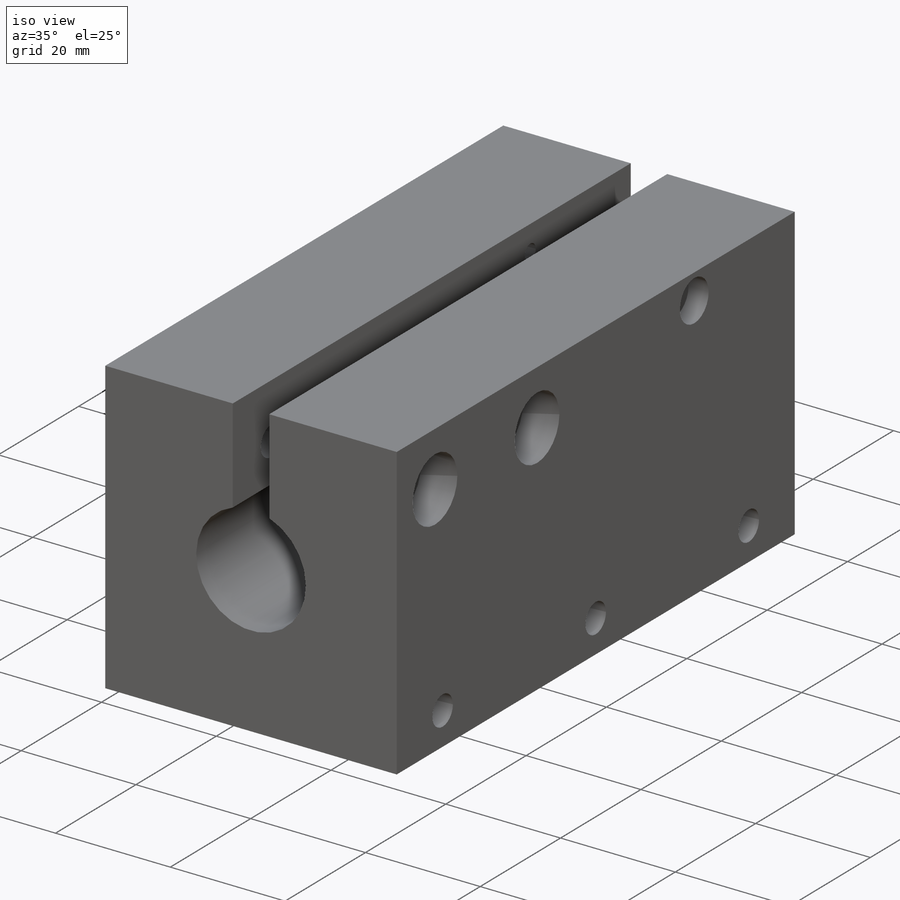
[diagram: iso view]
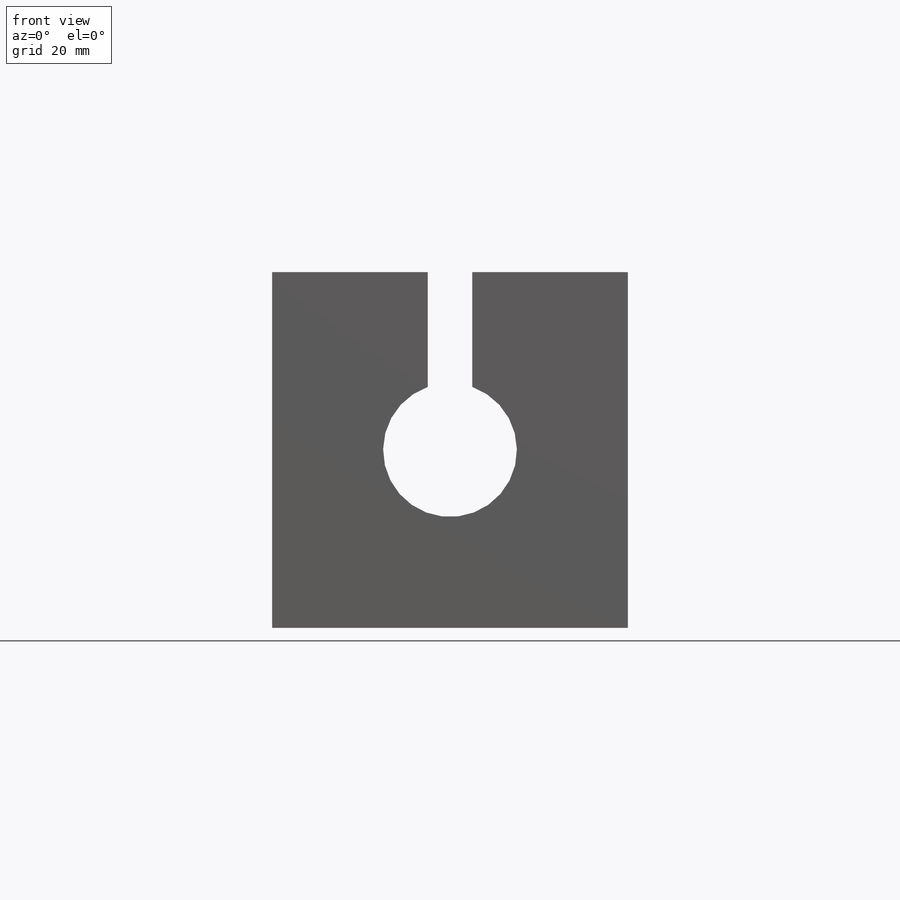
[diagram: front view]
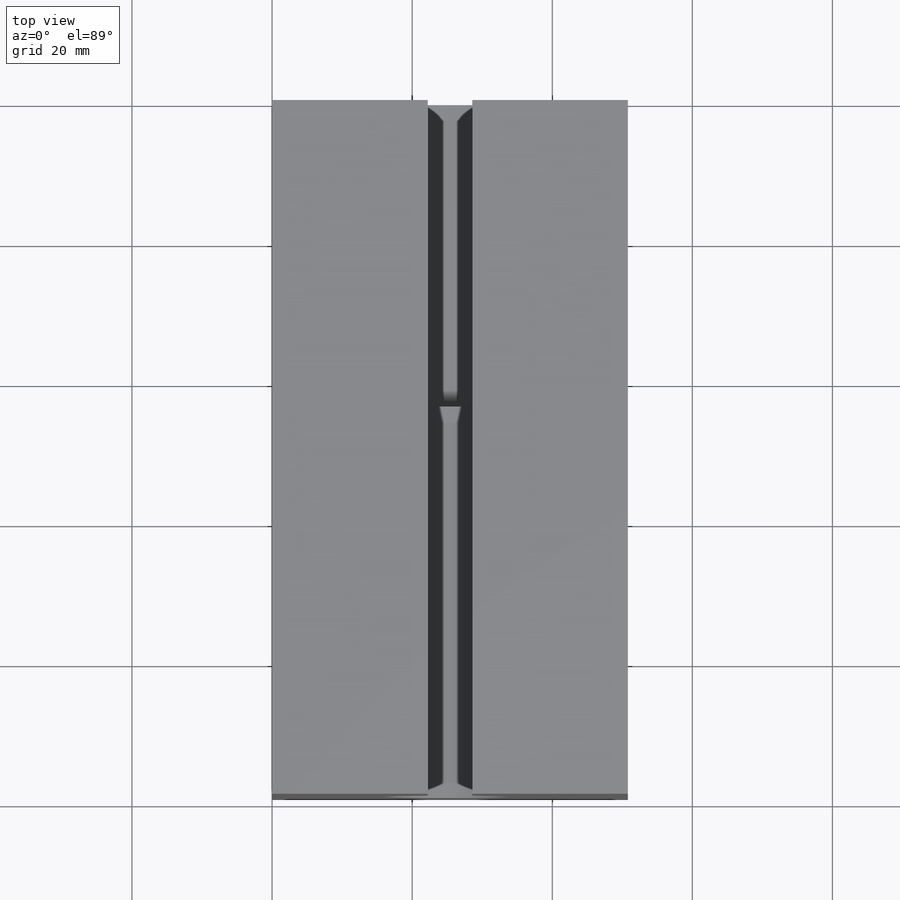
[diagram: top view]
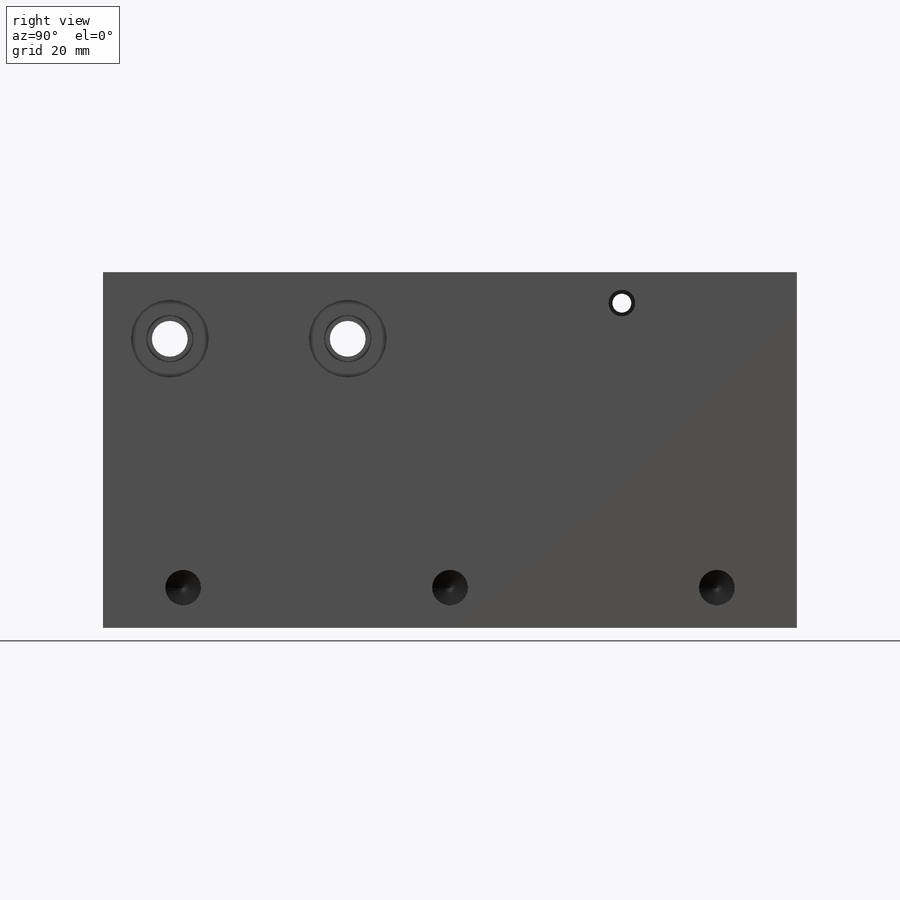
[diagram: right view]
SOLIDWORKS PART (.sldprt)
format: sldprt  version: not decoded by parser v0  size: 453,120 bytes
history: native  units: mm
features: sketch x16, hole x6, cut_extrude x3, material x1, extrude x1 (+13 scaffold rows collapsed)
feature tree (40):
  scaffold x13  (default folders/planes/origin — collapsed)
  material  "Material <not specified>"
  sketch  "Sketch1"  dims[D1=50.8mm D2=50.8mm]
  extrude  "Boss-Extrude1"  Depth=99.06mm
  sketch  "Sketch2"  dims[D1=33.5mm]
  cut_extrude  "Cut-Extrude1"  Depth=43.18mm
  sketch  "Sketch3"  dims[D1=19.1008mm]
  cut_extrude  "Cut-Extrude2"  [1 undecoded]
  sketch  "Sketch6"  dims[D1=6.35mm]
  cut_extrude  "Cut-Extrude3"  [1 undecoded]
  hole  "CBORE for 1/4 Socket Head Cap Screw1"  Diameter=6.7564mm Depth=22.224mm
  sketch  "Sketch8"  dims[D1=9.525mm D2=9.525mm D3=25.4mm]
  sketch  "Sketch7"  dims[hole-wizard template sketch: 28 standard entries collapsed; hole parameters kept: c8.Hole Dia.=6.7564mm c8.Hole Depth=22.224mm c8.C'Bore Dia.=11.1125mm c8.C'Bore Depth=6.35mm c8.D5=~14.816244mm c8.Drill Angle=118.0deg]
  hole  "1/4-20 Tapped Hole1"  Diameter=5.1054mm Depth=22.224mm
  sketch  "Sketch10"
  sketch  "Sketch9"  dims[hole-wizard template sketch: 47 standard entries collapsed; hole parameters kept: c15.Tap Drill Depth=22.224mm c15.D3=~14.816244mm c15.Drill Angle=118.0deg]
  hole  "CBORE for #6 Socket Head Cap Screw1"  Diameter=3.7973mm Depth=22.224mm
  sketch  "Sketch12"  dims[D1=25.0mm D2=4.445mm]
  sketch  "Sketch11"  dims[hole-wizard template sketch: 28 standard entries collapsed; hole parameters kept: c8.Hole Dia.=3.7973mm c8.Hole Depth=22.224mm c8.C'Bore Dia.=~7.14502mm c8.C'Bore Depth=3.5052mm c8.D5=~14.816244mm c8.Drill Angle=118.0deg]
  hole  "#6-32 Tapped Hole1"  Diameter=2.7051mm Depth=22.225mm
  sketch  "Sketch14"
  sketch  "Sketch15"  dims[hole-wizard template sketch: 60 standard entries collapsed; hole parameters kept: c18.Thru Tap Drill Depth=22.225mm]
  hole  "1/4-20 Tapped Hole2"  Diameter=5.1054mm Depth=16.51mm
  sketch  "Sketch17"  dims[D1=5.715mm D2=38.1mm D3=38.1mm D4=11.43mm]
  sketch  "Sketch18"  dims[hole-wizard template sketch: 50 standard entries collapsed; hole parameters above]
  hole  "1/4-20 Tapped Hole3"  Diameter=5.1054mm Depth=16.51mm
  sketch  "Sketch20"
  sketch  "Sketch19"  dims[hole-wizard template sketch: 50 standard entries collapsed; hole parameters above]
decode coverage: 21 of 26 modeling features carry decoded parameters
note: ~ marks probable driven/reference dimensions
note: 2 parameter values undecoded
summary: Diameter pulled from absorbed wizard sketch
note: suppression state not decoded; provenance and decode notes live in map.json
